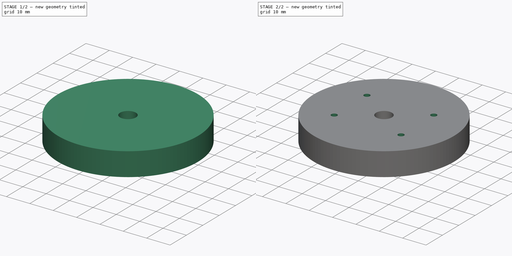
[diagram: build sequence overview — one tinted view per stage of 2, left to right]
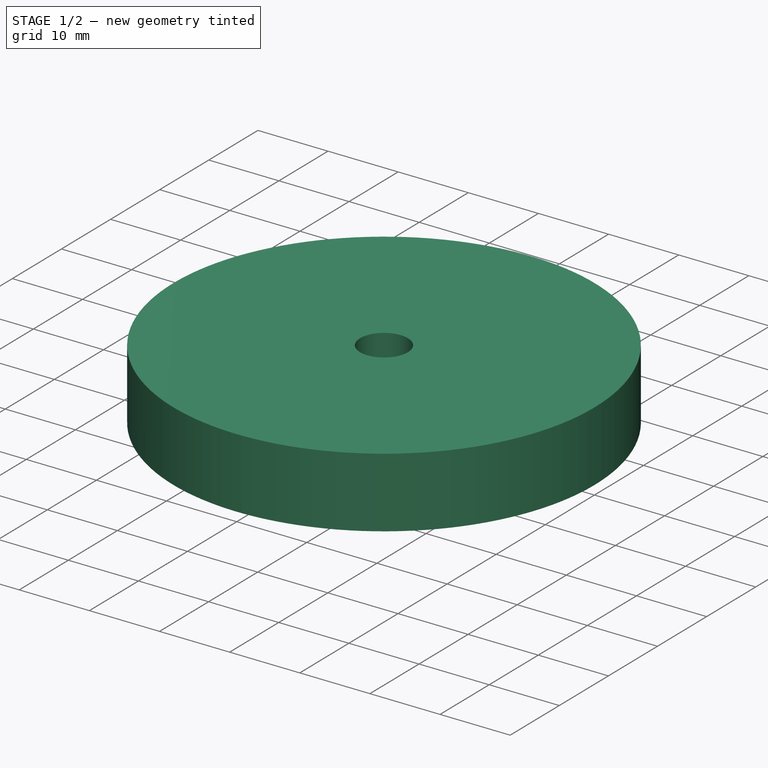
[diagram: stage 1 of 2 — iso view after this stage's code; geometry added in this stage tinted green]
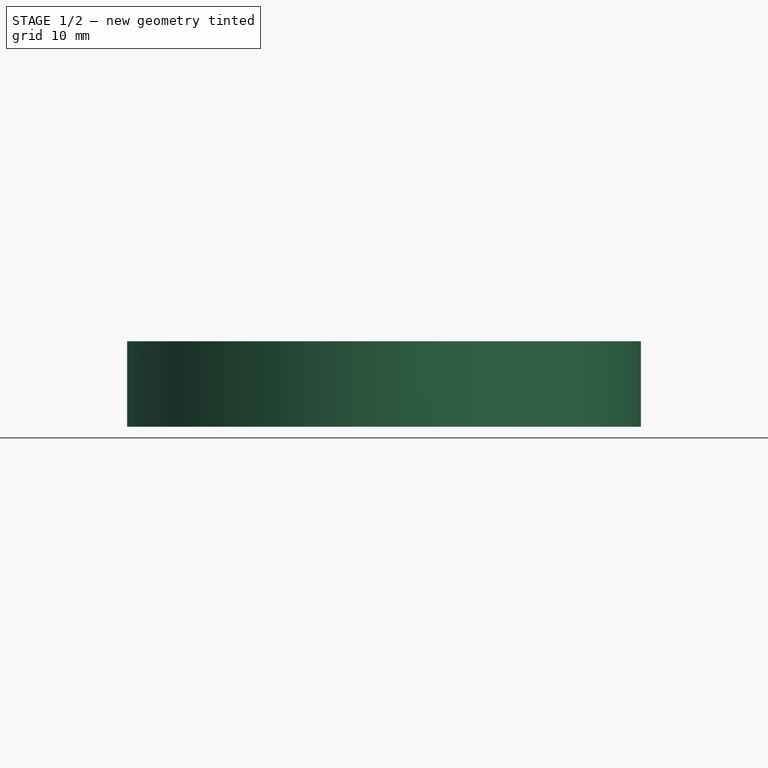
[diagram: stage 1 of 2 — front view after this stage's code; geometry added in this stage tinted green]
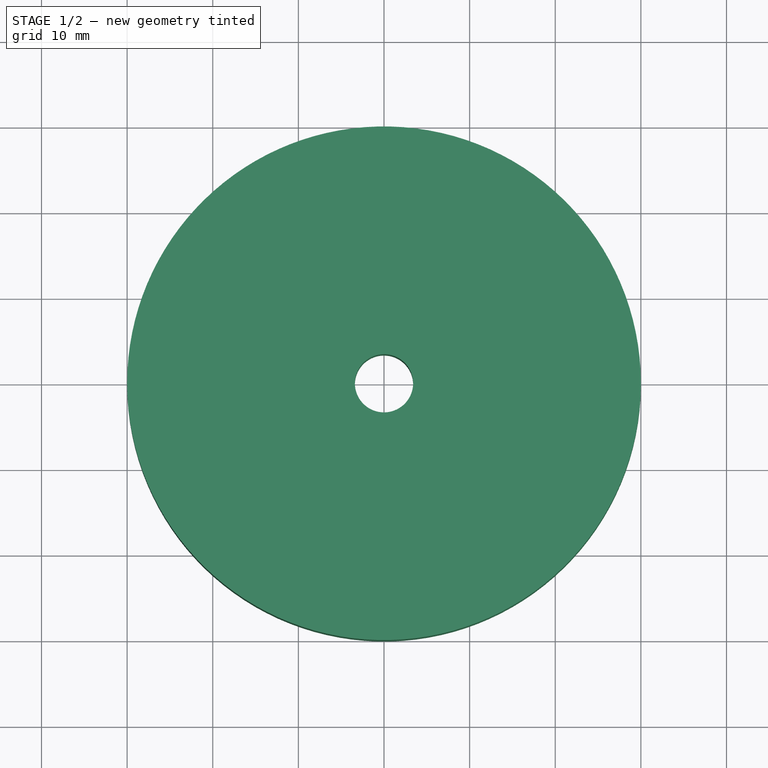
[diagram: stage 1 of 2 — top view after this stage's code; geometry added in this stage tinted green]
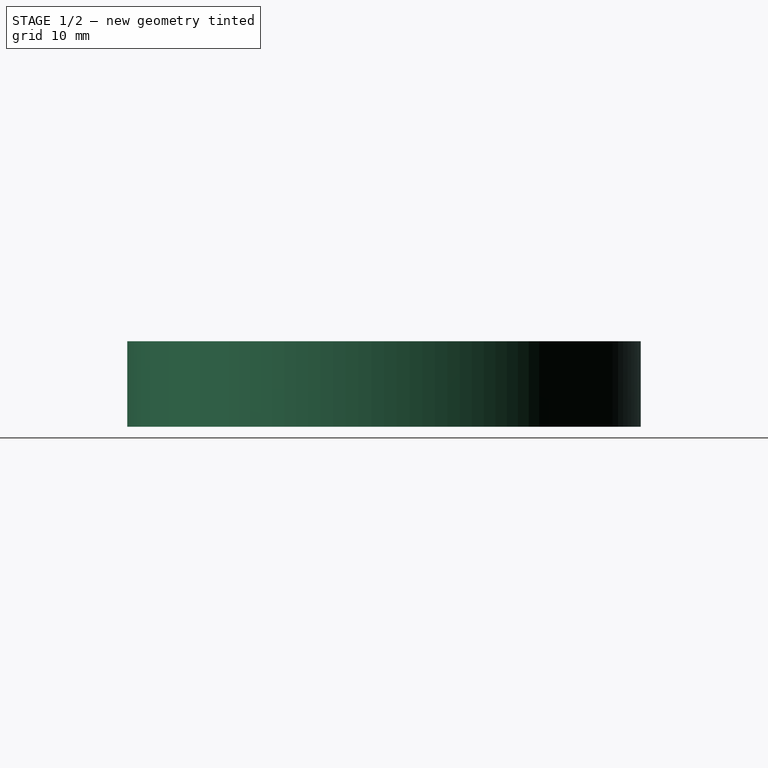
[diagram: stage 1 of 2 — right view after this stage's code; geometry added in this stage tinted green]
FCSTD DOCUMENT  (FreeCAD 0.21R33771 (Git))
Label: Couple Plate
License: All rights reserved
LicenseURL: http://en.wikipedia.org/wiki/All_rights_reserved
objects: PartDesign::CoordinateSystem×5, Sketcher::SketchObject×3, PartDesign::Hole×2, PartDesign::Pad×1, PartDesign::Body×1
note: 15 computed .brp shape members not serialized (recipe doc carries the construction recipe); baked Part::Feature solids carry a one-line shape summary decoded from their .brp

FEATURE [Sketcher::SketchObject] Sketch
  FullyConstrained = true
  MapMode = 5
  Support = -> [XY_Plane]
  sketch-geometry (1):
    g0: Circle CenterX=0 CenterY=0 CenterZ=0 NormalX=0 NormalY=0 NormalZ=1 AngleXU=0 Radius=30
  constraints (2):
    c: Coincident(g0,g-1)
    c: Diameter(g0) = 60
FEATURE [PartDesign::Pad] Pad
  Direction = (0,0,1)
  Length = 10
  Length2 = 10
  Profile = -> Sketch
  ReferenceAxis = -> Sketch [N_Axis]
  Type = 0
FEATURE [Sketcher::SketchObject] Sketch001
  FullyConstrained = true
  MapMode = 5
  Support = -> [XY_Plane]
  sketch-geometry (1):
    g0: Circle CenterX=0 CenterY=0 CenterZ=0 NormalX=0 NormalY=0 NormalZ=1 AngleXU=0 Radius=4
  constraints (2):
    c: Coincident(g0,g-1)
    c: Diameter(g0) = 8
FEATURE [PartDesign::Hole] Hole
  BaseFeature = -> Pad
  CustomThreadClearance = 0
  Depth = 172.359
  DepthType = 1
  Diameter = 6.8
  DrillForDepth = false
  DrillPoint = 1
  DrillPointAngle = 118
  HoleCutCountersinkAngle = 90
  HoleCutCustomValues = false
  HoleCutDepth = 0
  HoleCutDiameter = 0
  HoleCutType = 0
  ModelThread = false
  Profile = -> Sketch001
  Reversed = true
  Tapered = false
  TaperedAngle = 90
  ThreadClass = 0
  ThreadDepth = 172.359
  ThreadDepthType = 0
  ThreadDirection = 0
  ThreadFit = 0
  ThreadSize = 16
  ThreadType = 1
  Threaded = true
  UseCustomThreadClearance = false
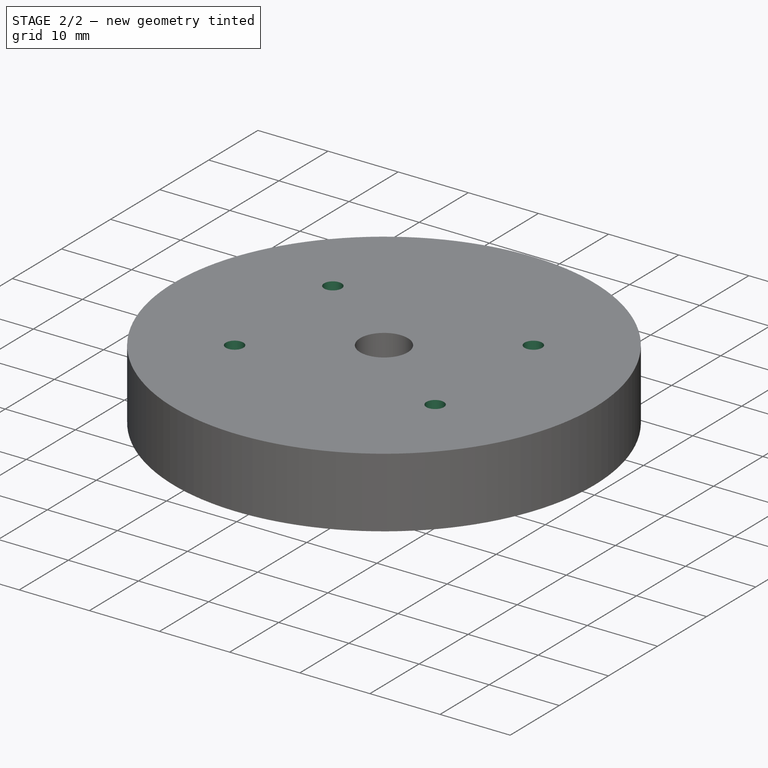
[diagram: stage 2 of 2 — iso view after this stage's code; geometry added in this stage tinted green]
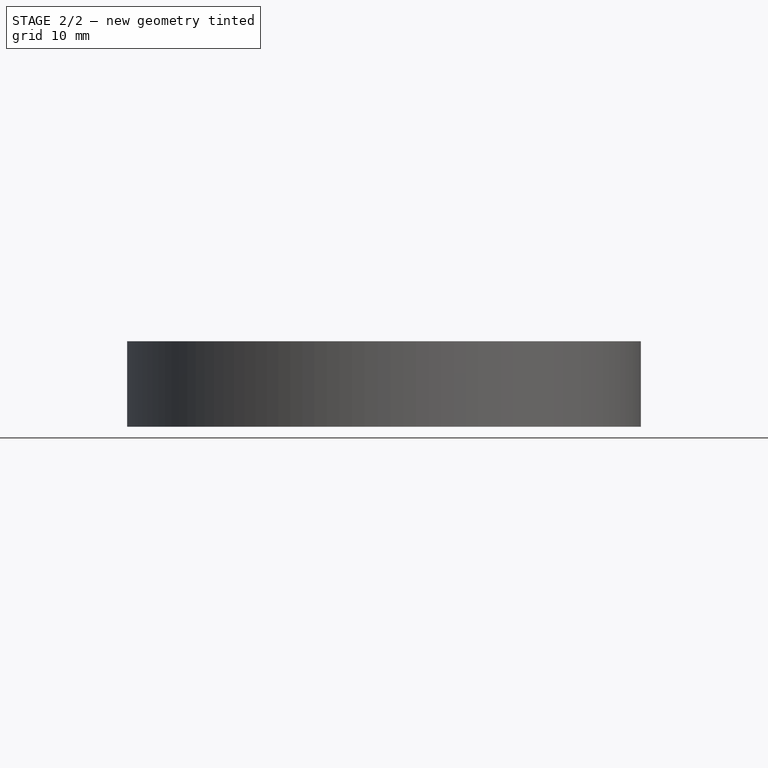
[diagram: stage 2 of 2 — front view after this stage's code; geometry added in this stage tinted green]
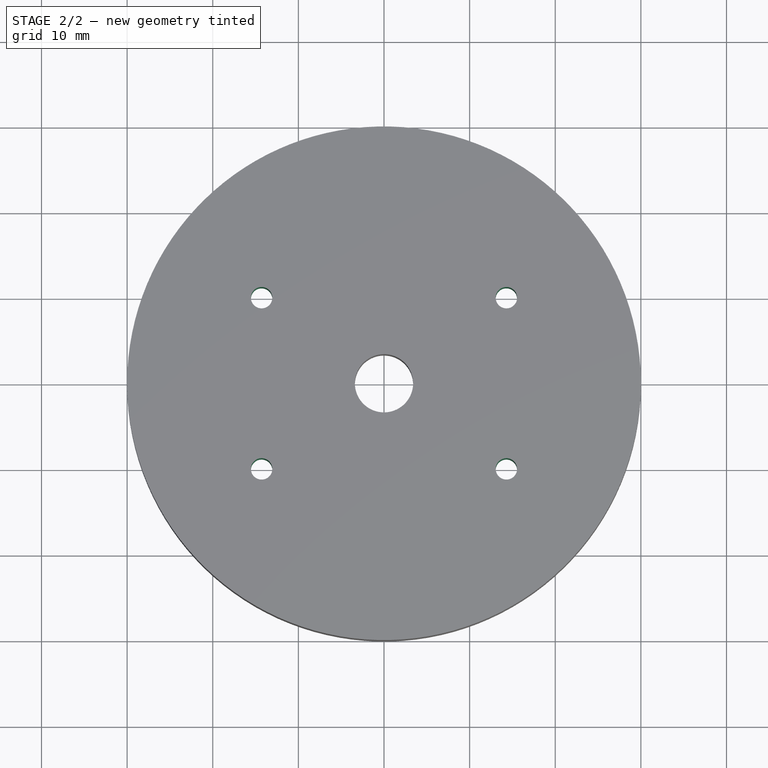
[diagram: stage 2 of 2 — top view after this stage's code; geometry added in this stage tinted green]
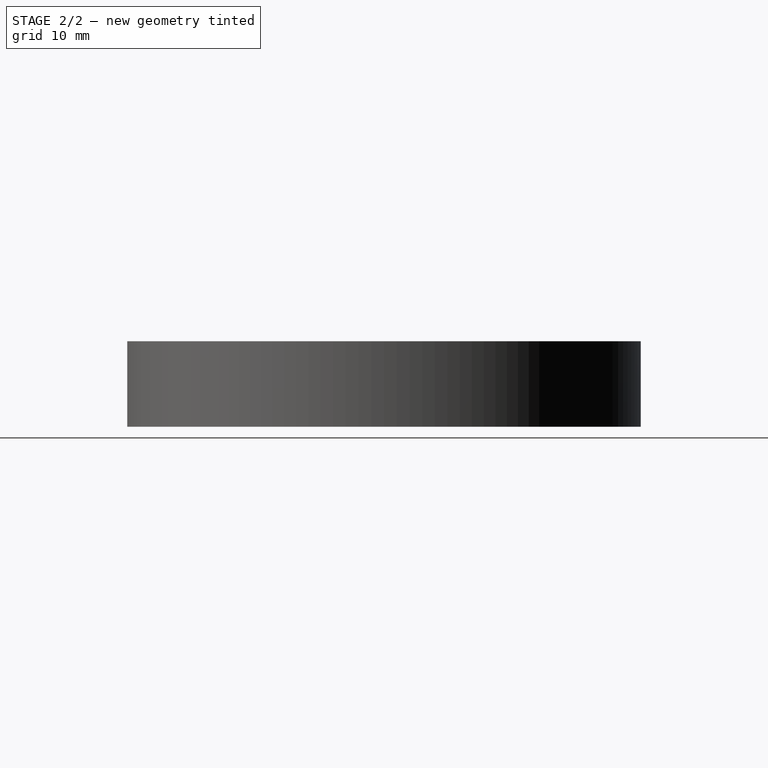
[diagram: stage 2 of 2 — right view after this stage's code; geometry added in this stage tinted green]
FEATURE [Sketcher::SketchObject] Sketch002
  FullyConstrained = true
  MapMode = 5
  Support = -> [XY_Plane]
  sketch-geometry (9):
    g0: LineSegment StartX=-14.295 StartY=-10 StartZ=0 EndX=-14.295 EndY=10 EndZ=0
    g1: LineSegment StartX=-14.295 StartY=10 StartZ=0 EndX=14.295 EndY=10 EndZ=0
    g2: LineSegment StartX=14.295 StartY=10 StartZ=0 EndX=14.295 EndY=-10 EndZ=0
    g3: LineSegment StartX=14.295 StartY=-10 StartZ=0 EndX=-14.295 EndY=-10 EndZ=0
    g4: GeomPoint X=0 Y=0 Z=0
    g5: Circle CenterX=-14.295 CenterY=10 CenterZ=0 NormalX=0 NormalY=0 NormalZ=1 AngleXU=0 Radius=1.5
    g6: Circle CenterX=14.295 CenterY=10 CenterZ=0 NormalX=0 NormalY=0 NormalZ=1 AngleXU=0 Radius=1.5
    g7: Circle CenterX=14.295 CenterY=-10 CenterZ=0 NormalX=0 NormalY=0 NormalZ=1 AngleXU=0 Radius=1.5
    g8: Circle CenterX=-14.295 CenterY=-10 CenterZ=0 NormalX=0 NormalY=0 NormalZ=1 AngleXU=0 Radius=1.5
  constraints (20):
    c: Coincident(g0,g1)
    c: Coincident(g1,g2)
    c: Coincident(g2,g3)
    c: Coincident(g3,g0)
    c: Horizontal(g1)
    c: Horizontal(g3)
    c: Vertical(g0)
    c: Vertical(g2)
    c: Symmetric(g1,g0,g4)
    c: Coincident(g4,g-1)
    c: Coincident(g5,g0)
    c: Coincident(g6,g1)
    c: Coincident(g7,g2)
    c: Coincident(g8,g0)
    c: Equal(g8,g7)
    c: Equal(g7,g6)
    c: Equal(g6,g5)
    c: Diameter(g6) = 3
    c: DistanceX(g1,g1) = 28.59
    c: DistanceY(g2,g2) = 20
FEATURE [PartDesign::Hole] Hole001
  BaseFeature = -> Hole
  CustomThreadClearance = 0
  Depth = 172.359
  DepthType = 1
  Diameter = 2.5
  DrillForDepth = false
  DrillPoint = 1
  DrillPointAngle = 118
  HoleCutCountersinkAngle = 90
  HoleCutCustomValues = false
  HoleCutDepth = 0
  HoleCutDiameter = 6.1
  HoleCutType = 0
  ModelThread = false
  Profile = -> Sketch002
  Reversed = true
  Tapered = false
  TaperedAngle = 90
  ThreadClass = 0
  ThreadDepth = 172.359
  ThreadDepthType = 0
  ThreadDirection = 0
  ThreadFit = 0
  ThreadSize = 9
  ThreadType = 1
  Threaded = true
  UseCustomThreadClearance = false
FEATURE [PartDesign::CoordinateSystem] Local_CS
  AttacherType = Attacher::AttachEngine3D
  MapMode = 11
  Placement = pos=(0,0,0) rot=(0.707107,0.707107,0;3.14159rad)
  Support = -> [Hole001]
FEATURE [PartDesign::CoordinateSystem] Local_CS001
  AttacherType = Attacher::AttachEngine3D
  MapMode = 11
  Placement = pos=(-14.295,10,10) rot=(0,0,-1;1.5708rad)
  Support = -> [Hole001]
FEATURE [PartDesign::CoordinateSystem] Local_CS002
  AttacherType = Attacher::AttachEngine3D
  MapMode = 11
  Placement = pos=(14.295,-10,10) rot=(0,0,-1;1.5708rad)
  Support = -> [Hole001]
FEATURE [PartDesign::CoordinateSystem] Local_CS003
  AttacherType = Attacher::AttachEngine3D
  MapMode = 11
  Placement = pos=(-14.295,-10,10) rot=(0,0,-1;1.5708rad)
  Support = -> [Hole001]
FEATURE [PartDesign::CoordinateSystem] Local_CS004
  AttacherType = Attacher::AttachEngine3D
  MapMode = 11
  Placement = pos=(14.295,10,10) rot=(0,0,-1;1.5708rad)
  Support = -> [Hole001]
FEATURE [PartDesign::Body] Body  label="Couple Plate"
  Group = -> [Sketch,Pad,Sketch001,Hole,Sketch002,Hole001,Local_CS,Local_CS001,Local_CS002,Local_CS003,Local_CS004]
  Origin = -> Origin
  Tip = -> Hole001
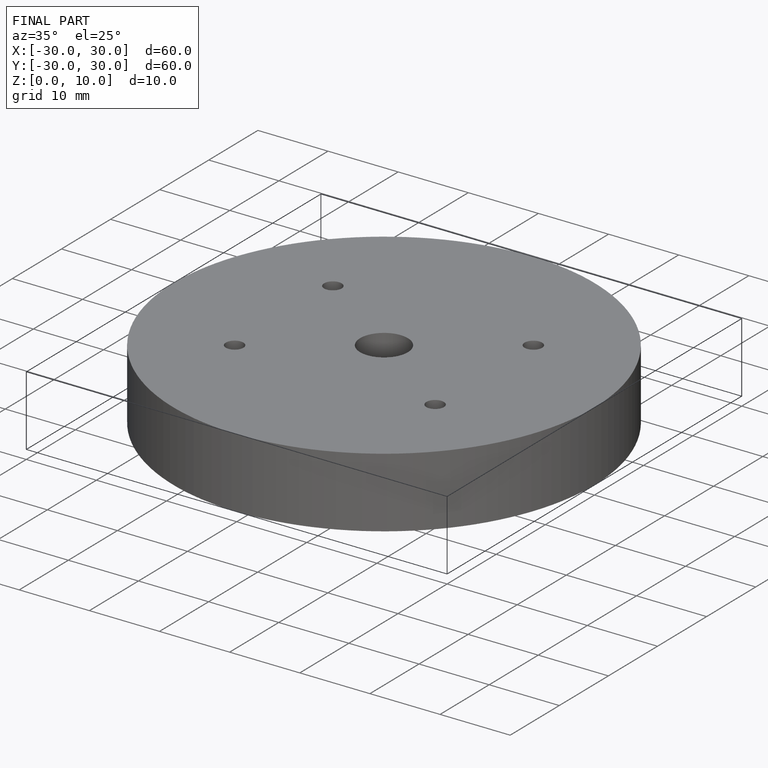
[diagram: finished part — iso view with bounding-box wireframe]
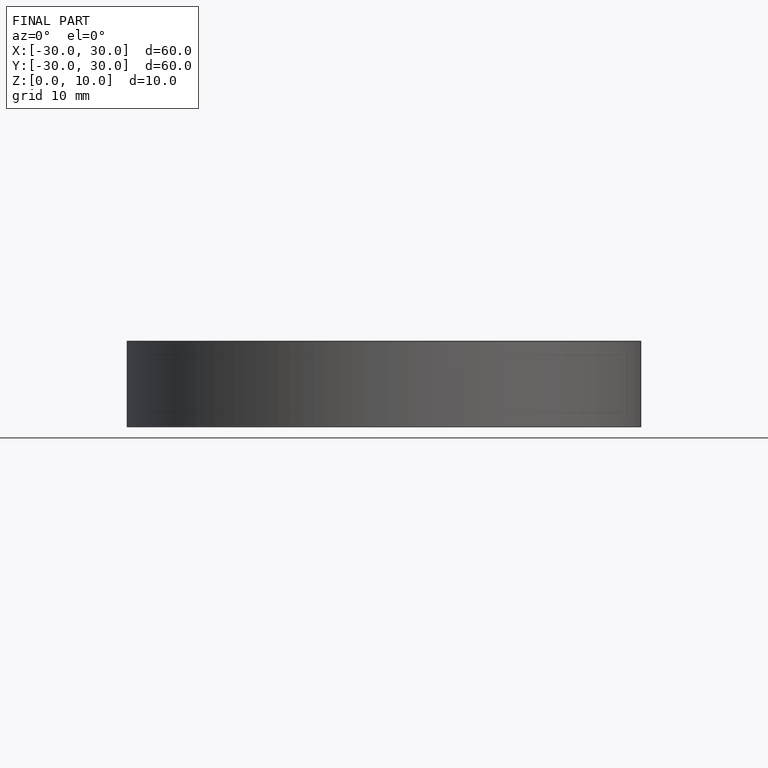
[diagram: finished part — front view with bounding-box wireframe]
